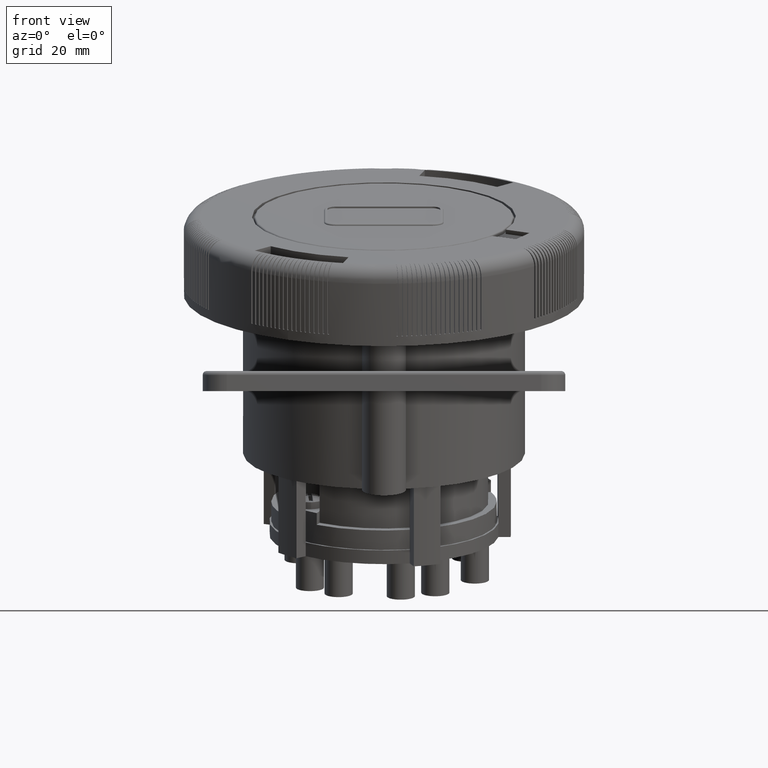
[diagram: clean part render]
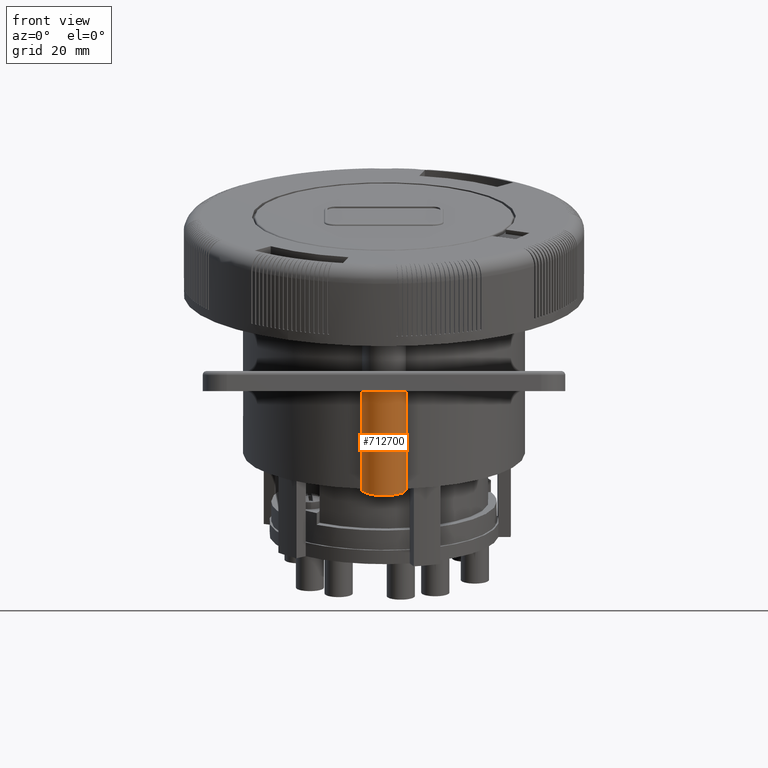
[diagram: same view with one face highlighted and labeled with its STEP entity id]
A machine part, front view. The second image highlights one B-rep face of the part: STEP entity #712700.
In plain terms, the highlighted cylindrical surface (edge-blend (fillet) strip) has radius 5.5 mm, axis along (0, -0.2588, 0.9659).
Its self-contained STEP definition (entity closure, byte-faithful):
#710710=CARTESIAN_POINT('',(60.3116143689471,14.5525068663276,
-41.0000004816056));
#710720=VERTEX_POINT('',#710710);
#710750=CARTESIAN_POINT('',(65.1369943147574,17.1917697138992,
-41.0000004816056));
#710760=DIRECTION('',(1.52655665885959E-16,-3.05311331771918E-16,1.));
#710770=DIRECTION('',(0.877341808329136,0.479865972285764,
1.38777878078145E-17));
#710780=AXIS2_PLACEMENT_3D('',#710750,#710760,#710770);
#710790=CIRCLE('',#710780,5.5);
#710800=CARTESIAN_POINT('',(69.9623742605676,19.8310325614709,
-41.0000004816056));
#710810=VERTEX_POINT('',#710800);
#710820=EDGE_CURVE('',#710720,#710810,#710790,.T.);
#712170=CARTESIAN_POINT('',(60.3116143689471,14.5525068663275,
-15.6507875927297));
#712180=VERTEX_POINT('',#712170);
#712230=CARTESIAN_POINT('',(60.3116143689472,14.5525068663275,
10.9999995183943));
#712240=DIRECTION('',(-1.52655665885959E-16,3.05311331771918E-16,-1.));
#712250=VECTOR('',#712240,1.);
#712260=LINE('',#712230,#712250);
#712270=EDGE_CURVE('',#712180,#710720,#712260,.T.);
#712460=CARTESIAN_POINT('',(65.1369943147574,17.1917697138992,
10.9999995183943));
#712470=DIRECTION('',(1.52655665885959E-16,-3.05311331771918E-16,1.));
#712480=DIRECTION('',(0.877341808329136,0.479865972285764,
1.38777878078145E-17));
#712490=AXIS2_PLACEMENT_3D('',#712460,#712470,#712480);
#712500=CYLINDRICAL_SURFACE('',#712490,5.5);
#712510=CARTESIAN_POINT('',(65.1369943147574,17.1917697138992,
-15.6507875927297));
#712520=DIRECTION('',(-0.124198452724194,0.227072769060265,
0.965925826289068));
#712530=DIRECTION('',(-0.463514935788134,0.847447111148266,
-0.25881904510252));
#712540=AXIS2_PLACEMENT_3D('',#712510,#712520,#712530);
#712550=ELLIPSE('',#712540,5.69401899225546,5.5);
#712560=CARTESIAN_POINT('',(69.9623742605676,19.8310325614709,
-15.6507875927297));
#712570=VERTEX_POINT('',#712560);
#712580=EDGE_CURVE('',#712180,#712570,#712550,.T.);
#712590=ORIENTED_EDGE('',*,*,#712580,.F.);
#712600=CARTESIAN_POINT('',(69.9623742605677,19.8310325614709,
10.9999995183943));
#712610=DIRECTION('',(-1.52655665885959E-16,3.05311331771918E-16,-1.));
#712620=VECTOR('',#712610,1.);
#712630=LINE('',#712600,#712620);
#712640=EDGE_CURVE('',#712570,#710810,#712630,.T.);
#712650=ORIENTED_EDGE('',*,*,#712640,.F.);
#712660=ORIENTED_EDGE('',*,*,#710820,.T.);
#712670=ORIENTED_EDGE('',*,*,#712270,.T.);
#712680=EDGE_LOOP('',(#712670,#712660,#712650,#712590));
#712690=FACE_OUTER_BOUND('',#712680,.T.);
#712700=ADVANCED_FACE('',(#712690),#712500,.T.);